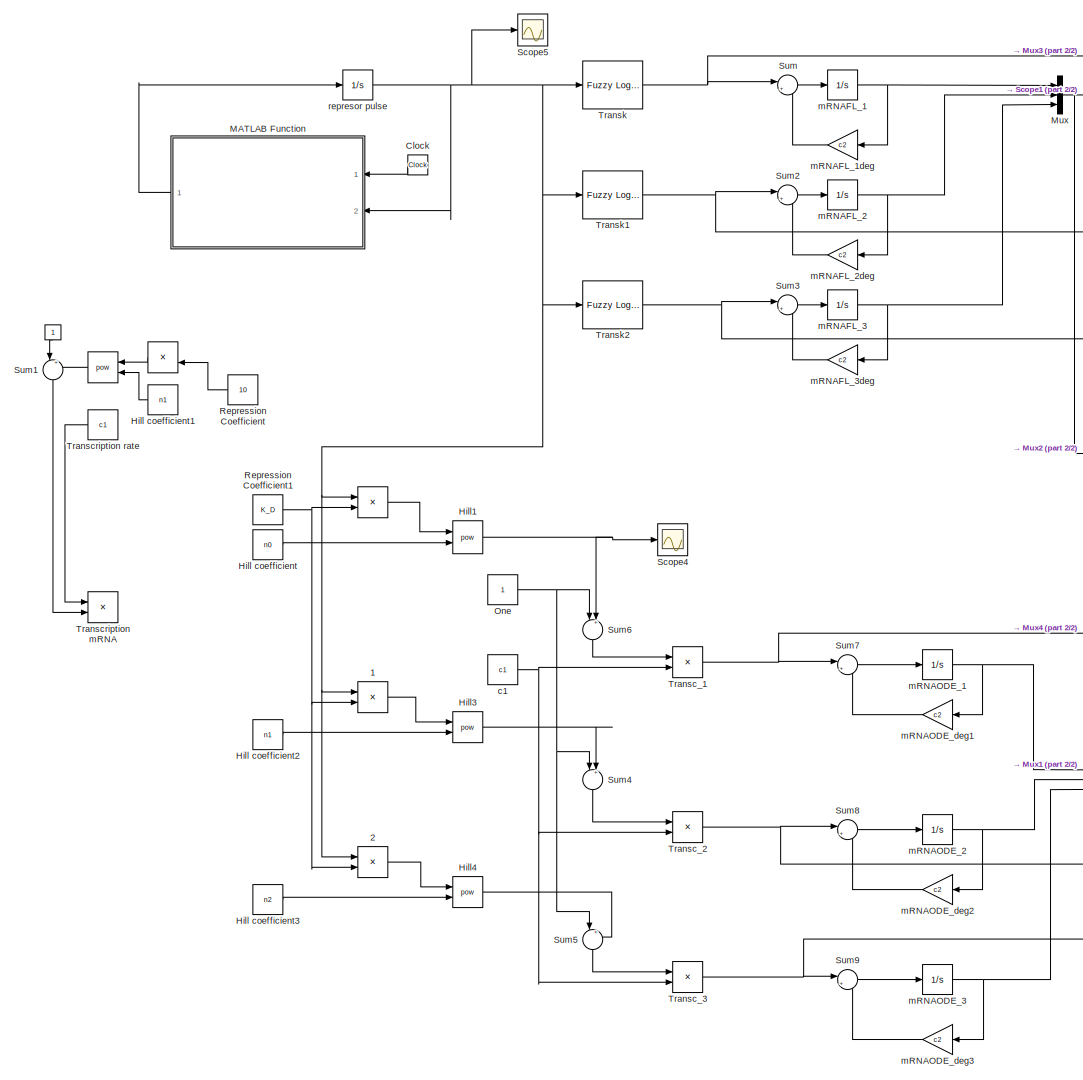
[diagram: root canvas - part 1/2, left side, full height]
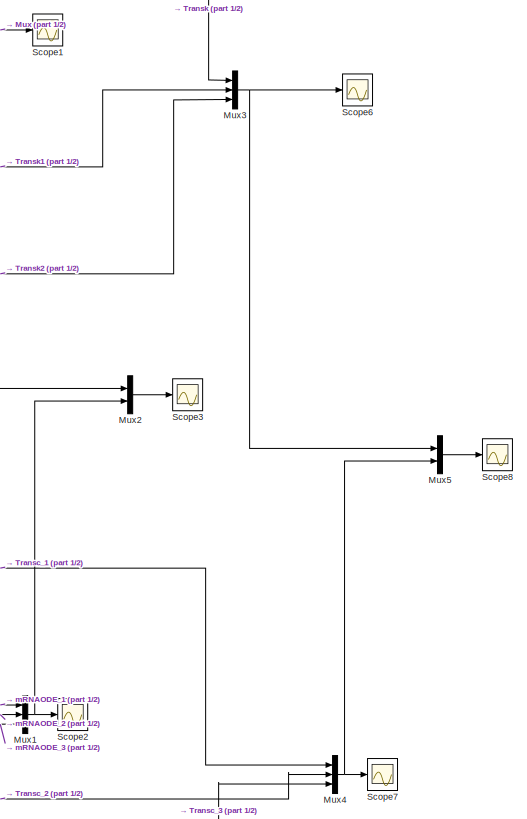
[diagram: root canvas - part 2/2, right side, full height]
MODEL slx_fa99123fcc82
KIND model
CONFIG AbsTol = auto
CONFIG FixedStep = 0.1
CONFIG MaxStep = auto
CONFIG MinStep = auto
CONFIG RelTol = 1e-3
CONFIG SampleTimeConstraint = Unconstrained
CONFIG Solver = ode4
CONFIG SolverMode = Auto
CONFIG SolverName = ode4
CONFIG StartTime = 0.0
CONFIG StopTime = 1000
BLOCK [Product]  
  InputSameDT = off
  Inputs = */
  OutDataTypeStr = Inherit: Inherit via internal rule
  Ports = [2, 1]
  RndMeth = Floor
  SaturateOnIntegerOverflow = off
BLOCK [Constant]           
  Commented = on
BLOCK [Product]  1
  InputSameDT = off
  Inputs = */
  OutDataTypeStr = Inherit: Inherit via internal rule
  Ports = [2, 1]
  RndMeth = Floor
  SaturateOnIntegerOverflow = off
BLOCK [Product]  2
  InputSameDT = off
  Inputs = */
  OutDataTypeStr = Inherit: Inherit via internal rule
  Ports = [2, 1]
  RndMeth = Floor
  SaturateOnIntegerOverflow = off
BLOCK [Clock] Clock
BLOCK [Constant] Hill coefficient
  Value = n0
BLOCK [Constant] Hill coefficient1
  Commented = on
  Value = n1
BLOCK [Constant] Hill coefficient2
  Value = n1
BLOCK [Constant] Hill coefficient3
  Value = n2
BLOCK [Math] Hill1
  Operator = pow
  Ports = [2, 1]
BLOCK [Math] Hill3
  Operator = pow
  Ports = [2, 1]
BLOCK [Math] Hill4
  Operator = pow
  Ports = [2, 1]
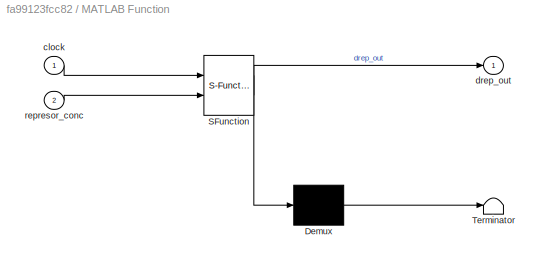
BLOCK [SubSystem] MATLAB Function
  ErrorFcn = Stateflow.Translate.translate
  PermitHierarchicalResolution = ExplicitOnly
  Ports = [2, 1]
  RequestExecContextInheritance = off
  SFBlockType = MATLAB Function
  TreatAsAtomicUnit = on
BLOCK [Demux] MATLAB Function/ Demux 
  Outputs = 1
  Ports = [1, 1]
BLOCK [S-Function] MATLAB Function/ SFunction 
  EnableBusSupport = on
  FunctionName = sf_sfun
  PortCounts = [2 2]
  Ports = [2, 2]
  Tag = Stateflow S-Function rep3_transc_analysis_pulse 2
BLOCK [Terminator] MATLAB Function/ Terminator 
BLOCK [Inport] MATLAB Function/clock
  IconDisplay = Port number
BLOCK [Outport] MATLAB Function/drep_out
  IconDisplay = Port number
BLOCK [Inport] MATLAB Function/represor_conc
  IconDisplay = Port number
  Port = 2
BLOCK [Mux] Mux
  DisplayOption = bar
  Inputs = 3
  Ports = [3, 1]
BLOCK [Mux] Mux1
  DisplayOption = bar
  Inputs = 3
  Ports = [3, 1]
BLOCK [Mux] Mux2
  DisplayOption = bar
  Inputs = 2
  Ports = [2, 1]
BLOCK [Mux] Mux3
  DisplayOption = bar
  Inputs = 3
  Ports = [3, 1]
BLOCK [Mux] Mux4
  DisplayOption = bar
  Inputs = 3
  Ports = [3, 1]
BLOCK [Mux] Mux5
  DisplayOption = bar
  Inputs = 2
  Ports = [2, 1]
BLOCK [Constant] One
BLOCK [Constant] Repression Coefficient
  Commented = on
  Value = 10
BLOCK [Constant] Repression Coefficient1
  Value = K_D
BLOCK [Scope] Scope1
  Floating = off
  LimitDataPoints = off
  NumInputPorts = 1
  Ports = [1]
  SampleTime = 0
  SaveName = mRNA_FL_pulse
  SaveToWorkspace = on
  TimeRange = 100
  YMax = 6.25
  YMin = 6.24957
BLOCK [Scope] Scope2
  Floating = off
  LimitDataPoints = off
  NumInputPorts = 1
  Ports = [1]
  SampleTime = 0
  SaveName = mRNA_ODE_pulse
  SaveToWorkspace = on
  TimeRange = 100
  YMax = 1.5
  YMin = 0
  ZoomMode = xonly
BLOCK [Scope] Scope3
  Floating = off
  LimitDataPoints = off
  NumInputPorts = 1
  Ports = [1]
  SampleTime = 0
  SaveName = mRNAChange2
  SaveToWorkspace = on
  TimeRange = 1000
  YMax = 18
  YMin = 0
BLOCK [Scope] Scope4
  Floating = off
  LimitDataPoints = off
  NumInputPorts = 1
  Ports = [1]
  SampleTime = 0
  SaveName = mRNAChange3
  SaveToWorkspace = on
  TimeRange = 100
  YMax = 1.5
  YMin = 0
  ZoomMode = xonly
BLOCK [Scope] Scope5
  Floating = off
  LimitDataPoints = off
  NumInputPorts = 1
  Ports = [1]
  SampleTime = 0
  SaveName = mRNAChange4
  SaveToWorkspace = on
  TimeRange = 100
  YMax = 1.5
  YMin = 0
  ZoomMode = yonly
BLOCK [Scope] Scope6
  Floating = off
  LimitDataPoints = off
  NumInputPorts = 1
  Ports = [1]
  SampleTime = 0
  SaveName = mRNAc_FL_pulse
  SaveToWorkspace = on
  TimeRange = 100
  YMax = 6.25
  YMin = 6.24957
BLOCK [Scope] Scope7
  Floating = off
  LimitDataPoints = off
  NumInputPorts = 1
  Ports = [1]
  SampleTime = 0
  SaveName = mRNAc_ODE_pulse
  SaveToWorkspace = on
  TimeRange = 100
  YMax = 1.5
  YMin = 0
  ZoomMode = xonly
BLOCK [Scope] Scope8
  Floating = off
  LimitDataPoints = off
  NumInputPorts = 1
  Ports = [1]
  SampleTime = 0
  SaveName = mRNAChange
  SaveToWorkspace = on
  TimeRange = 1000
  YMax = 18
  YMin = 0
  ZoomMode = yonly
BLOCK [Sum] Sum
  IconShape = round
  InputSameDT = off
  Inputs = |+-
  OutDataTypeStr = Inherit: Inherit via internal rule
  Ports = [2, 1]
  SaturateOnIntegerOverflow = off
BLOCK [Sum] Sum1
  Commented = on
  IconShape = round
  InputSameDT = off
  Inputs = |++
  OutDataTypeStr = Inherit: Inherit via internal rule
  Ports = [2, 1]
  SaturateOnIntegerOverflow = off
BLOCK [Sum] Sum2
  IconShape = round
  InputSameDT = off
  Inputs = |+-
  OutDataTypeStr = Inherit: Inherit via internal rule
  Ports = [2, 1]
  SaturateOnIntegerOverflow = off
BLOCK [Sum] Sum3
  IconShape = round
  InputSameDT = off
  Inputs = |+-
  OutDataTypeStr = Inherit: Inherit via internal rule
  Ports = [2, 1]
  SaturateOnIntegerOverflow = off
BLOCK [Sum] Sum4
  IconShape = round
  InputSameDT = off
  Inputs = |++
  OutDataTypeStr = Inherit: Inherit via internal rule
  Ports = [2, 1]
  SaturateOnIntegerOverflow = off
BLOCK [Sum] Sum5
  IconShape = round
  InputSameDT = off
  Inputs = |++
  OutDataTypeStr = Inherit: Inherit via internal rule
  Ports = [2, 1]
  SaturateOnIntegerOverflow = off
BLOCK [Sum] Sum6
  IconShape = round
  InputSameDT = off
  Inputs = |++
  OutDataTypeStr = Inherit: Inherit via internal rule
  Ports = [2, 1]
  SaturateOnIntegerOverflow = off
BLOCK [Sum] Sum7
  IconShape = round
  InputSameDT = off
  Inputs = |+-
  OutDataTypeStr = Inherit: Inherit via internal rule
  Ports = [2, 1]
  SaturateOnIntegerOverflow = off
BLOCK [Sum] Sum8
  IconShape = round
  InputSameDT = off
  Inputs = |+-
  OutDataTypeStr = Inherit: Inherit via internal rule
  Ports = [2, 1]
  SaturateOnIntegerOverflow = off
BLOCK [Sum] Sum9
  IconShape = round
  InputSameDT = off
  Inputs = |+-
  OutDataTypeStr = Inherit: Inherit via internal rule
  Ports = [2, 1]
  SaturateOnIntegerOverflow = off
BLOCK [Product] Transc_1
  InputSameDT = off
  Inputs = /*
  OutDataTypeStr = Inherit: Inherit via internal rule
  Ports = [2, 1]
  RndMeth = Floor
  SaturateOnIntegerOverflow = off
BLOCK [Product] Transc_2
  InputSameDT = off
  Inputs = /*
  OutDataTypeStr = Inherit: Inherit via internal rule
  Ports = [2, 1]
  RndMeth = Floor
  SaturateOnIntegerOverflow = off
BLOCK [Product] Transc_3
  InputSameDT = off
  Inputs = /*
  OutDataTypeStr = Inherit: Inherit via internal rule
  Ports = [2, 1]
  RndMeth = Floor
  SaturateOnIntegerOverflow = off
BLOCK [Product] Transcription mRNA
  Commented = on
  InputSameDT = off
  Inputs = */
  OutDataTypeStr = Inherit: Inherit via internal rule
  Ports = [2, 1]
  RndMeth = Floor
  SaturateOnIntegerOverflow = off
BLOCK [Constant] Transcription rate
  Commented = on
  Value = c1
BLOCK [Reference] Transk  REF=fuzblock/Fuzzy Logic   (lib defined in mdl_858b3b3e7478)
Controller
  Ports = [1, 1]
  SourceBlock = fuzblock/Fuzzy Logic \nController
  SourceType = FIS
  fis = Transk0
BLOCK [Reference] Transk1  REF=fuzblock/Fuzzy Logic   (lib defined in mdl_858b3b3e7478)
Controller
  Ports = [1, 1]
  SourceBlock = fuzblock/Fuzzy Logic \nController
  SourceType = FIS
  fis = Transk1
BLOCK [Reference] Transk2  REF=fuzblock/Fuzzy Logic   (lib defined in mdl_858b3b3e7478)
Controller
  Ports = [1, 1]
  SourceBlock = fuzblock/Fuzzy Logic \nController
  SourceType = FIS
  fis = Transk2
BLOCK [Constant] c1
  Value = c1
BLOCK [Integrator] mRNAFL_1
  LimitOutput = on
  LowerSaturationLimit = 0
  Ports = [1, 1]
BLOCK [Gain] mRNAFL_1deg
  Gain = c2
  OutDataTypeStr = Inherit: Inherit via internal rule
  ParamDataTypeStr = Inherit: Inherit via internal rule
  SaturateOnIntegerOverflow = off
BLOCK [Integrator] mRNAFL_2
  LimitOutput = on
  LowerSaturationLimit = 0
  Ports = [1, 1]
BLOCK [Gain] mRNAFL_2deg
  Gain = c2
  OutDataTypeStr = Inherit: Inherit via internal rule
  ParamDataTypeStr = Inherit: Inherit via internal rule
  SaturateOnIntegerOverflow = off
BLOCK [Integrator] mRNAFL_3
  LimitOutput = on
  LowerSaturationLimit = 0
  Ports = [1, 1]
BLOCK [Gain] mRNAFL_3deg
  Gain = c2
  OutDataTypeStr = Inherit: Inherit via internal rule
  ParamDataTypeStr = Inherit: Inherit via internal rule
  SaturateOnIntegerOverflow = off
BLOCK [Integrator] mRNAODE_1
  LimitOutput = on
  LowerSaturationLimit = 0
  Ports = [1, 1]
BLOCK [Integrator] mRNAODE_2
  LimitOutput = on
  LowerSaturationLimit = 0
  Ports = [1, 1]
BLOCK [Integrator] mRNAODE_3
  LimitOutput = on
  LowerSaturationLimit = 0
  Ports = [1, 1]
BLOCK [Gain] mRNAODE_deg1
  Gain = c2
  OutDataTypeStr = Inherit: Inherit via internal rule
  ParamDataTypeStr = Inherit: Inherit via internal rule
  SaturateOnIntegerOverflow = off
BLOCK [Gain] mRNAODE_deg2
  Gain = c2
  OutDataTypeStr = Inherit: Inherit via internal rule
  ParamDataTypeStr = Inherit: Inherit via internal rule
  SaturateOnIntegerOverflow = off
BLOCK [Gain] mRNAODE_deg3
  Gain = c2
  OutDataTypeStr = Inherit: Inherit via internal rule
  ParamDataTypeStr = Inherit: Inherit via internal rule
  SaturateOnIntegerOverflow = off
BLOCK [Integrator] represor pulse
  InitialCondition = 400
  LimitOutput = on
  LowerSaturationLimit = 0
  Ports = [1, 1]
  UpperSaturationLimit = 400
LINE           :1 -> Sum1:1
LINE  1:1 -> Hill3:1
LINE  2:1 -> Hill4:1
NET  :1 ->  :1, Hill1:1, Sum1:2
LINE Clock:1 -> MATLAB Function:1
LINE Hill coefficient1:1 ->  :2
LINE Hill coefficient2:1 -> Hill3:2
LINE Hill coefficient3:1 -> Hill4:2
LINE Hill coefficient:1 -> Hill1:2
NET Hill1:1 -> Scope4:1, Sum6:2
LINE Hill3:1 -> Sum4:2
LINE Hill4:1 -> Sum5:2
LINE MATLAB Function:1 -> represor pulse:1
NET Mux1:1 -> Mux2:2, Scope2:1
LINE Mux2:1 -> Scope3:1
NET Mux3:1 -> Mux5:1, Scope6:1
NET Mux4:1 -> Mux5:2, Scope7:1
LINE Mux5:1 -> Scope8:1
NET Mux:1 -> Mux2:1, Scope1:1
NET One:1 -> Sum4:1, Sum5:1, Sum6:1
NET Repression Coefficient1:1 ->  1:2,  2:2,  :2
LINE Repression Coefficient:1 ->  :2
LINE Sum1:1 -> Transcription mRNA:2
LINE Sum2:1 -> mRNAFL_2:1
LINE Sum3:1 -> mRNAFL_3:1
LINE Sum4:1 -> Transc_2:1
LINE Sum5:1 -> Transc_3:1
LINE Sum6:1 -> Transc_1:1
LINE Sum7:1 -> mRNAODE_1:1
LINE Sum8:1 -> mRNAODE_2:1
LINE Sum9:1 -> mRNAODE_3:1
LINE Sum:1 -> mRNAFL_1:1
NET Transc_1:1 -> Mux4:1, Sum7:1
NET Transc_2:1 -> Mux4:2, Sum8:1
NET Transc_3:1 -> Mux4:3, Sum9:1
LINE Transcription rate:1 -> Transcription mRNA:1
NET Transk1:1 -> Mux3:2, Sum2:1
NET Transk2:1 -> Mux3:3, Sum3:1
NET Transk:1 -> Mux3:1, Sum:1
NET c1:1 -> Transc_1:2, Transc_2:2, Transc_3:2
NET mRNAFL_1:1 -> Mux:1, mRNAFL_1deg:1
LINE mRNAFL_1deg:1 -> Sum:2
NET mRNAFL_2:1 -> Mux:2, mRNAFL_2deg:1
LINE mRNAFL_2deg:1 -> Sum2:2
NET mRNAFL_3:1 -> Mux:3, mRNAFL_3deg:1
LINE mRNAFL_3deg:1 -> Sum3:2
NET mRNAODE_1:1 -> Mux1:1, mRNAODE_deg1:1
NET mRNAODE_2:1 -> Mux1:2, mRNAODE_deg2:1
NET mRNAODE_3:1 -> Mux1:3, mRNAODE_deg3:1
LINE mRNAODE_deg1:1 -> Sum7:2
LINE mRNAODE_deg2:1 -> Sum8:2
LINE mRNAODE_deg3:1 -> Sum9:2
NET represor pulse:1 ->  1:1,  2:1,  :1, MATLAB Function:2, Scope5:1, Transk1:1, Transk2:1, Transk:1
note: NET lines group one-source signal fan-out (src -> all destinations, sorted); 1:1 wires keep LINE
CHART MATLAB Function states=1 transitions=1
  STATE_LABEL 'eML_blk_kernel()'
  STATE_LABEL 'SCRIPT:\nfunction drep_out  = degradation_transc_analysis(clock,represor_conc)\n\ndrep_out = 0;\n\nif (clock < 400)\n    drep_out = 0;    \nelseif (clock >=400 && clock <=700)\n    drep_out = -0.06*represor_conc;\nelse\n    drep_out = 2.6*9-0.06*represor_conc;\nend;'
